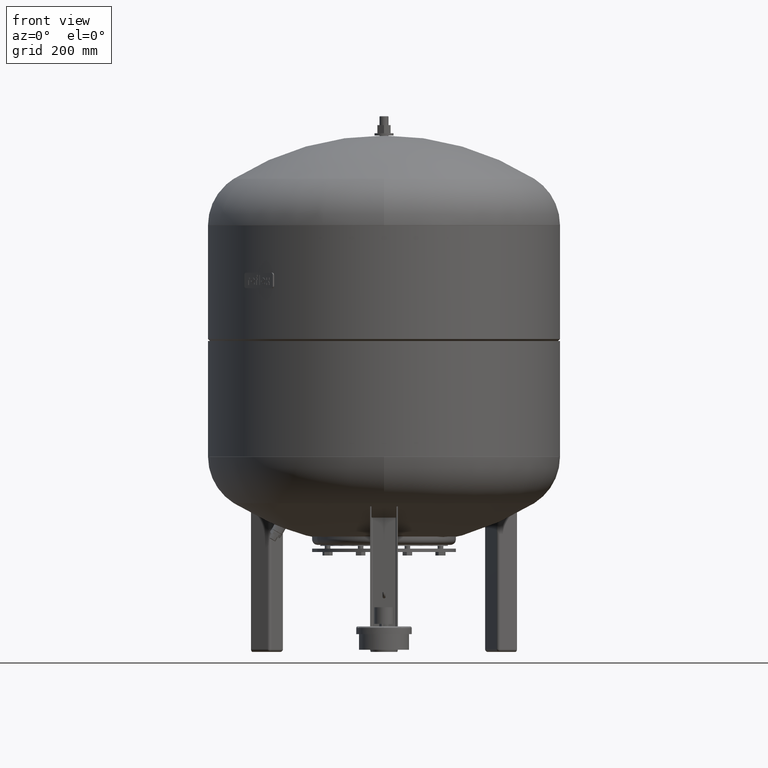
[diagram: clean part render]
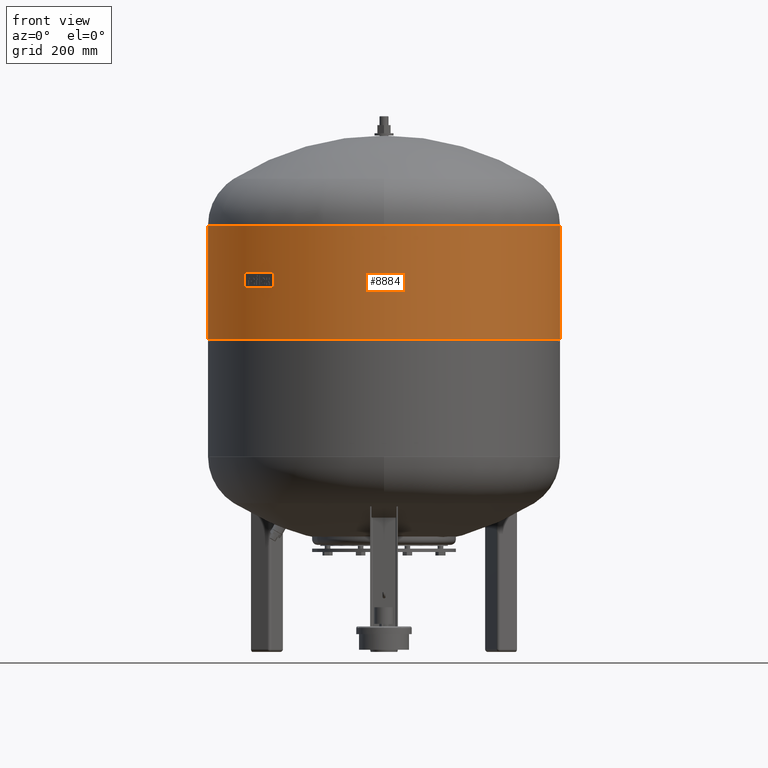
[diagram: same view with one face highlighted and labeled with its STEP entity id]
A machine part, front view. The second image highlights one B-rep face of the part: STEP entity #8884.
In plain terms, the highlighted cylindrical surface (partial cylindrical patch) has radius 317 mm, axis along (-0, 0, -1).
Its self-contained STEP definition (entity closure, byte-faithful):
#8784=CARTESIAN_POINT('',(316.999999999999830,3.882130E-014,563.500000000000000));
#8785=VERTEX_POINT('',#8784);
#8801=CARTESIAN_POINT('',(-316.999999999999940,-1.282117E-018,563.500000000000000));
#8802=VERTEX_POINT('',#8801);
#8824=CARTESIAN_POINT('',(317.0,3.882130E-014,768.0));
#8825=VERTEX_POINT('',#8824);
#8826=CARTESIAN_POINT('',(316.999999999999830,3.882130E-014,563.500000000000000));
#8827=DIRECTION('',(0.0,0.0,1.0));
#8828=VECTOR('',#8827,204.500000000000000);
#8829=LINE('',#8826,#8828);
#8830=EDGE_CURVE('',#8785,#8825,#8829,.T.);
#8833=CARTESIAN_POINT('',(-316.999999999999940,-1.282117E-018,768.000000000000110));
#8834=VERTEX_POINT('',#8833);
#8835=CARTESIAN_POINT('',(-316.999999999999940,-1.282117E-018,563.500000000000000));
#8836=DIRECTION('',(0.0,0.0,1.0));
#8837=VECTOR('',#8836,204.500000000000110);
#8838=LINE('',#8835,#8837);
#8839=EDGE_CURVE('',#8802,#8834,#8838,.T.);
#8856=CARTESIAN_POINT('',(8.784689E-015,-2.043686E-030,768.000000000000110));
#8857=DIRECTION('',(0.0,0.0,-1.0));
#8858=DIRECTION('',(1.0,0.0,0.0));
#8859=AXIS2_PLACEMENT_3D('',#8856,#8857,#8858);
#8860=CIRCLE('',#8859,317.0);
#8861=EDGE_CURVE('',#8825,#8834,#8860,.T.);
#8867=CARTESIAN_POINT('',(5.224356E-015,-1.215404E-030,683.700000000000050));
#8868=DIRECTION('',(-4.223408E-017,9.825415E-033,-1.0));
#8869=DIRECTION('',(1.0,0.0,0.0));
#8870=AXIS2_PLACEMENT_3D('',#8867,#8868,#8869);
#8871=CYLINDRICAL_SURFACE('',#8870,316.999999999999940);
#8872=ORIENTED_EDGE('',*,*,#8830,.T.);
#8873=ORIENTED_EDGE('',*,*,#8861,.T.);
#8874=ORIENTED_EDGE('',*,*,#8839,.F.);
#8875=CARTESIAN_POINT('',(1.478193E-016,-3.438895E-032,563.500000000000000));
#8876=DIRECTION('',(0.0,0.0,-1.0));
#8877=DIRECTION('',(1.0,0.0,0.0));
#8878=AXIS2_PLACEMENT_3D('',#8875,#8876,#8877);
#8879=CIRCLE('',#8878,316.999999999999830);
#8880=EDGE_CURVE('',#8785,#8802,#8879,.T.);
#8881=ORIENTED_EDGE('',*,*,#8880,.F.);
#8882=EDGE_LOOP('',(#8872,#8873,#8874,#8881));
#8883=FACE_OUTER_BOUND('',#8882,.T.);
#8884=ADVANCED_FACE('',(#8883),#8871,.T.);